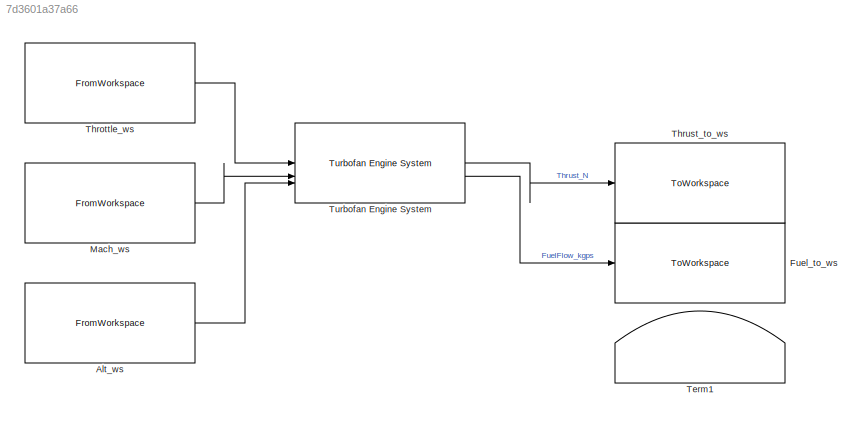
MODEL slx_7d3601a37a66
KIND model
CONFIG AbsTol = auto
CONFIG EnableMultiTasking = off
CONFIG FixedStep = auto
CONFIG MaxStep = auto
CONFIG MinStep = auto
CONFIG RelTol = 1e-3
CONFIG SampleTimeConstraint = Unconstrained
CONFIG SolverName = VariableStepAuto
CONFIG StartTime = 0.0
CONFIG StopTime = 1
BLOCK [FromWorkspace] Alt_ws
  VariableName = Alt
BLOCK [ToWorkspace] Fuel_to_ws
  FixptAsFi = on
  MaxDataPoints = inf
  SampleTime = -1
  SaveFormat = Timeseries
  VariableName = FuelFlow_kgps
BLOCK [FromWorkspace] Mach_ws
  VariableName = Mach
BLOCK [Terminator] Term1
BLOCK [FromWorkspace] Throttle_ws
  VariableName = Throttle
BLOCK [ToWorkspace] Thrust_to_ws
  FixptAsFi = on
  MaxDataPoints = inf
  SampleTime = -1
  SaveFormat = Timeseries
  VariableName = Thrust_N
BLOCK [Reference] Turbofan Engine System  REF=aerolibpropulsion2/Turbofan Engine System
  SourceBlock = aerolibpropulsion2/Turbofan Engine System
  SourceType = Turbofan Engine System
LINE Alt_ws:1 -> Turbofan Engine System:3
LINE Mach_ws:1 -> Turbofan Engine System:2
LINE Throttle_ws:1 -> Turbofan Engine System:1
LINE Turbofan Engine System:1 -> Thrust_to_ws:1
LINE Turbofan Engine System:2 -> Fuel_to_ws:1
